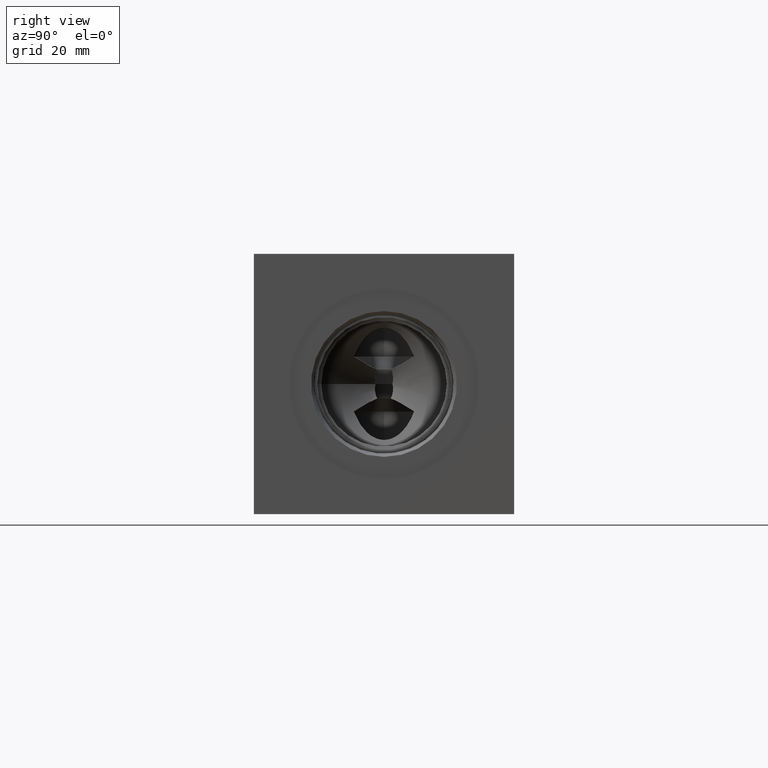
[diagram: clean part render]
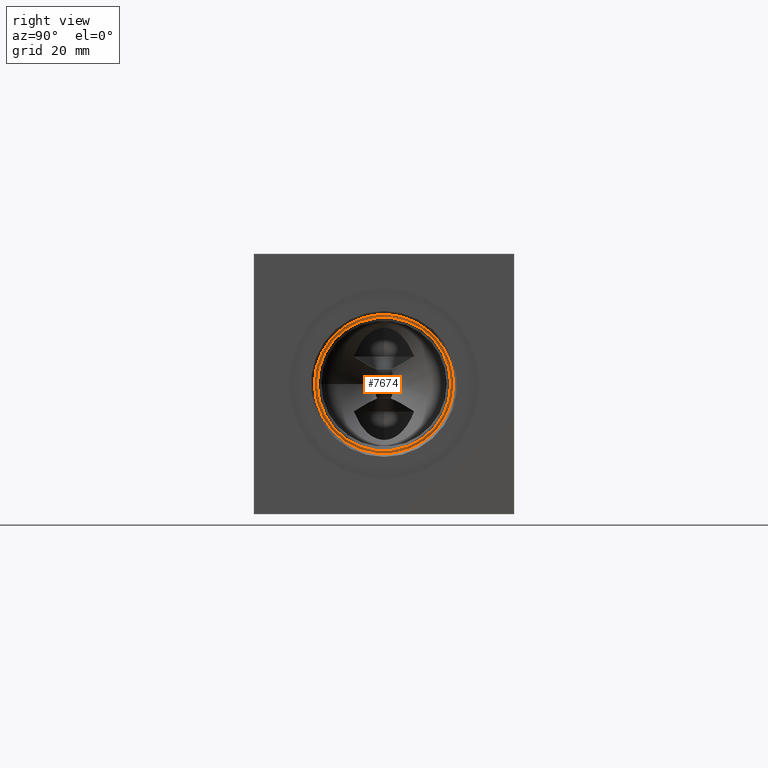
[diagram: same view with one face highlighted and labeled with its STEP entity id]
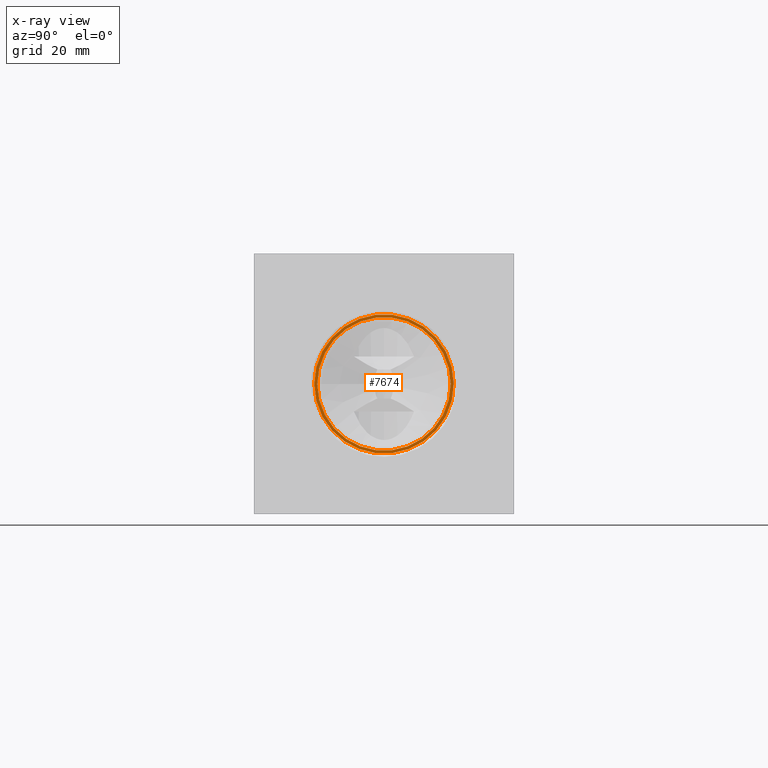
[diagram: x-ray of the same camera — body ghosted, the highlighted face saturated]
A machine part, right view. The second image highlights one B-rep face of the part: STEP entity #7674.
The next image is the same camera in x-ray: the body ghosted, the highlighted face saturated — about 0% of this face is hidden behind the body in this view.
In plain terms, the highlighted planar face has unit normal (1, 0, 0).
Its self-contained STEP definition (entity closure, byte-faithful):
#173=CIRCLE('',#8074,23.8125);
#174=CIRCLE('',#8075,23.8125);
#175=CIRCLE('',#8076,22.7838);
#246=FACE_BOUND('',#1386,.T.);
#955=FACE_OUTER_BOUND('',#1385,.T.);
#1385=EDGE_LOOP('',(#6646,#6647));
#1386=EDGE_LOOP('',(#6648));
#3529=VERTEX_POINT('',#13292);
#3530=VERTEX_POINT('',#13293);
#3531=VERTEX_POINT('',#13296);
#4582=EDGE_CURVE('',#3529,#3530,#173,.T.);
#4583=EDGE_CURVE('',#3530,#3529,#174,.T.);
#4584=EDGE_CURVE('',#3531,#3531,#175,.T.);
#6646=ORIENTED_EDGE('',*,*,#4582,.T.);
#6647=ORIENTED_EDGE('',*,*,#4583,.T.);
#6648=ORIENTED_EDGE('',*,*,#4584,.F.);
#6995=PLANE('',#8073);
#7674=ADVANCED_FACE('',(#955,#246),#6995,.T.);
#8073=AXIS2_PLACEMENT_3D('',#13291,#9546,#9547);
#8074=AXIS2_PLACEMENT_3D('',#13294,#9548,#9549);
#8075=AXIS2_PLACEMENT_3D('',#13295,#9550,#9551);
#8076=AXIS2_PLACEMENT_3D('',#13297,#9552,#9553);
#9546=DIRECTION('center_axis',(1.,0.,0.));
#9547=DIRECTION('ref_axis',(0.,1.,0.));
#9548=DIRECTION('center_axis',(1.,0.,0.));
#9549=DIRECTION('ref_axis',(0.,1.,0.));
#9550=DIRECTION('center_axis',(1.,0.,0.));
#9551=DIRECTION('ref_axis',(0.,1.,0.));
#9552=DIRECTION('center_axis',(1.,0.,0.));
#9553=DIRECTION('ref_axis',(0.,1.,0.));
#13291=CARTESIAN_POINT('Origin',(196.0626,44.45,44.45));
#13292=CARTESIAN_POINT('',(196.0626,68.2625,44.45));
#13293=CARTESIAN_POINT('',(196.0626,20.6375,44.45));
#13294=CARTESIAN_POINT('Origin',(196.0626,44.45,44.45));
#13295=CARTESIAN_POINT('Origin',(196.0626,44.45,44.45));
#13296=CARTESIAN_POINT('',(196.0626,21.6662,44.45));
#13297=CARTESIAN_POINT('Origin',(196.0626,44.45,44.45));